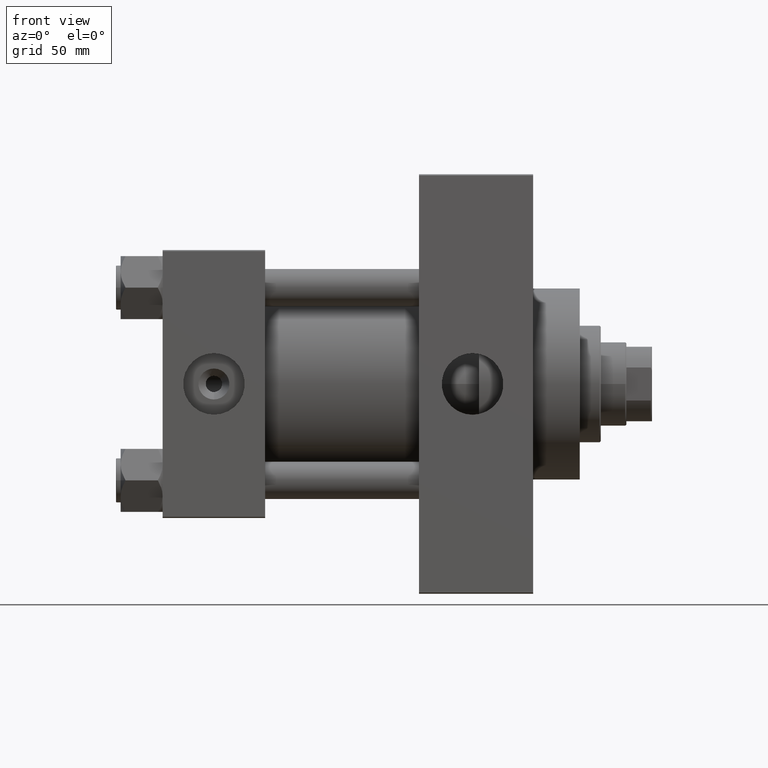
[diagram: clean part render]
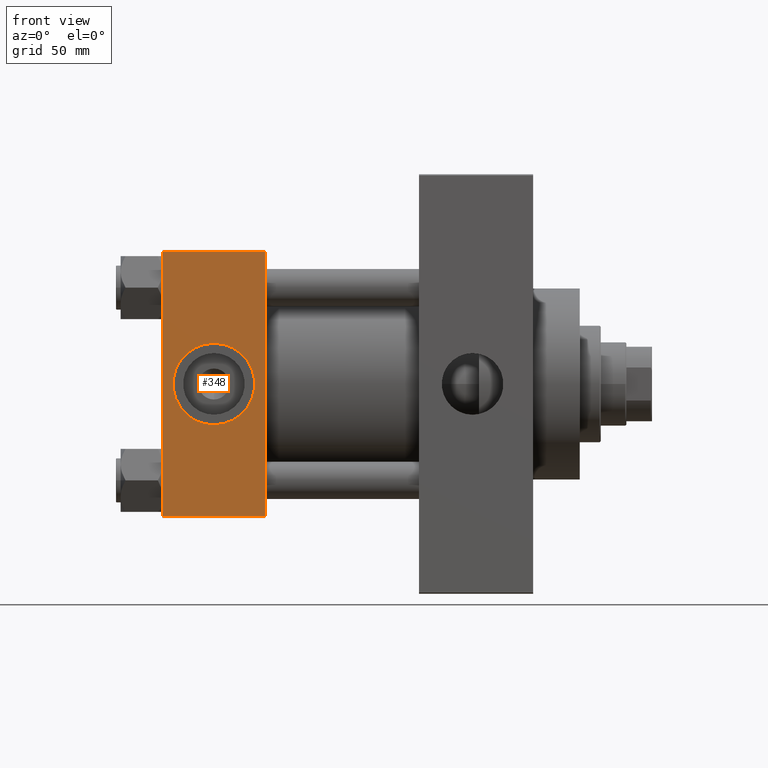
[diagram: same view with one face highlighted and labeled with its STEP entity id]
A machine part, front view. The second image highlights one B-rep face of the part: STEP entity #348.
In plain terms, the highlighted planar face has unit normal (0, 1, 0).
Its self-contained STEP definition (entity closure, byte-faithful):
#348 = ADVANCED_FACE ( 'NONE', ( #39245, #28653 ), #16828, .F. ) ;
#1315 = ORIENTED_EDGE ( 'NONE', *, *, #6171, .F. ) ;
#2569 = VERTEX_POINT ( 'NONE', #35652 ) ;
#2892 = CIRCLE ( 'NONE', #29084, 17.50000000000000000 ) ;
#3318 = EDGE_LOOP ( 'NONE', ( #39137, #31295, #1315, #25998 ) ) ;
#3739 = EDGE_CURVE ( 'NONE', #37235, #31086, #25476, .T. ) ;
#5335 = CARTESIAN_POINT ( 'NONE',  ( 22.00000000000000000, -57.50000000000000711, -17.50000000000000000 ) ) ;
#5703 = CIRCLE ( 'NONE', #32666, 17.50000000000000000 ) ;
#6171 = EDGE_CURVE ( 'NONE', #44789, #37851, #6313, .T. ) ;
#6313 = LINE ( 'NONE', #20549, #47539 ) ;
#7140 = DIRECTION ( 'NONE',  ( 0.000000000000000000, 0.000000000000000000, -1.000000000000000000 ) ) ;
#7587 = VECTOR ( 'NONE', #22988, 1000.000000000000000 ) ;
#7896 = EDGE_LOOP ( 'NONE', ( #14267, #24779 ) ) ;
#9087 = EDGE_CURVE ( 'NONE', #31086, #37851, #11914, .T. ) ;
#11914 = LINE ( 'NONE', #37452, #7587 ) ;
#12383 = CARTESIAN_POINT ( 'NONE',  ( 44.00000000000000000, -57.50000000000000711, -57.00000000000000711 ) ) ;
#13468 = DIRECTION ( 'NONE',  ( -0.000000000000000000, 1.000000000000000000, 0.000000000000000000 ) ) ;
#14267 = ORIENTED_EDGE ( 'NONE', *, *, #24650, .F. ) ;
#16828 = PLANE ( 'NONE',  #38873 ) ;
#17295 = DIRECTION ( 'NONE',  ( 0.000000000000000000, 0.000000000000000000, -1.000000000000000000 ) ) ;
#20549 = CARTESIAN_POINT ( 'NONE',  ( 44.00000000000000000, -57.50000000000000711, 57.49999999999999289 ) ) ;
#20686 = EDGE_CURVE ( 'NONE', #2569, #22969, #2892, .T. ) ;
#21399 = CARTESIAN_POINT ( 'NONE',  ( 44.00000000000000000, -57.50000000000000711, 57.49999999999999289 ) ) ;
#22969 = VERTEX_POINT ( 'NONE', #5335 ) ;
#22988 = DIRECTION ( 'NONE',  ( 1.000000000000000000, 0.000000000000000000, 0.000000000000000000 ) ) ;
#23563 = VECTOR ( 'NONE', #7140, 1000.000000000000000 ) ;
#24323 = CARTESIAN_POINT ( 'NONE',  ( 44.00000000000000000, -57.50000000000000711, 57.00000000000000711 ) ) ;
#24650 = EDGE_CURVE ( 'NONE', #22969, #2569, #5703, .T. ) ;
#24779 = ORIENTED_EDGE ( 'NONE', *, *, #20686, .F. ) ;
#25476 = LINE ( 'NONE', #40171, #23563 ) ;
#25496 = DIRECTION ( 'NONE',  ( 0.000000000000000000, -1.000000000000000000, -8.673617379884036705E-17 ) ) ;
#25998 = ORIENTED_EDGE ( 'NONE', *, *, #47564, .T. ) ;
#28169 = DIRECTION ( 'NONE',  ( 0.000000000000000000, -0.000000000000000000, 1.000000000000000000 ) ) ;
#28212 = CARTESIAN_POINT ( 'NONE',  ( 0.000000000000000000, -57.50000000000000711, 57.00000000000000711 ) ) ;
#28653 = FACE_OUTER_BOUND ( 'NONE', #3318, .T. ) ;
#29084 = AXIS2_PLACEMENT_3D ( 'NONE', #32493, #25496, #17295 ) ;
#29596 = LINE ( 'NONE', #30950, #35621 ) ;
#30950 = CARTESIAN_POINT ( 'NONE',  ( 44.00000000000000000, -57.50000000000000711, 57.00000000000000711 ) ) ;
#31086 = VERTEX_POINT ( 'NONE', #38137 ) ;
#31295 = ORIENTED_EDGE ( 'NONE', *, *, #9087, .T. ) ;
#32493 = CARTESIAN_POINT ( 'NONE',  ( 22.00000000000000000, -57.50000000000000711, 0.000000000000000000 ) ) ;
#32666 = AXIS2_PLACEMENT_3D ( 'NONE', #41860, #45942, #38238 ) ;
#35621 = VECTOR ( 'NONE', #44281, 1000.000000000000000 ) ;
#35652 = CARTESIAN_POINT ( 'NONE',  ( 22.00000000000000355, -57.50000000000000711, 17.50000000000000000 ) ) ;
#37235 = VERTEX_POINT ( 'NONE', #28212 ) ;
#37452 = CARTESIAN_POINT ( 'NONE',  ( 44.00000000000000000, -57.50000000000000711, -57.00000000000000711 ) ) ;
#37851 = VERTEX_POINT ( 'NONE', #12383 ) ;
#38137 = CARTESIAN_POINT ( 'NONE',  ( 0.000000000000000000, -57.50000000000000711, -57.00000000000000711 ) ) ;
#38238 = DIRECTION ( 'NONE',  ( 0.000000000000000000, 0.000000000000000000, -1.000000000000000000 ) ) ;
#38873 = AXIS2_PLACEMENT_3D ( 'NONE', #21399, #13468, #28169 ) ;
#39137 = ORIENTED_EDGE ( 'NONE', *, *, #3739, .T. ) ;
#39245 = FACE_BOUND ( 'NONE', #7896, .T. ) ;
#40171 = CARTESIAN_POINT ( 'NONE',  ( 0.000000000000000000, -57.50000000000000711, 57.49999999999999289 ) ) ;
#41860 = CARTESIAN_POINT ( 'NONE',  ( 22.00000000000000000, -57.50000000000000711, 0.000000000000000000 ) ) ;
#44281 = DIRECTION ( 'NONE',  ( -1.000000000000000000, 0.000000000000000000, 0.000000000000000000 ) ) ;
#44789 = VERTEX_POINT ( 'NONE', #24323 ) ;
#45942 = DIRECTION ( 'NONE',  ( 0.000000000000000000, -1.000000000000000000, -8.673617379884036705E-17 ) ) ;
#46341 = DIRECTION ( 'NONE',  ( 0.000000000000000000, 0.000000000000000000, -1.000000000000000000 ) ) ;
#47539 = VECTOR ( 'NONE', #46341, 1000.000000000000000 ) ;
#47564 = EDGE_CURVE ( 'NONE', #44789, #37235, #29596, .T. ) ;